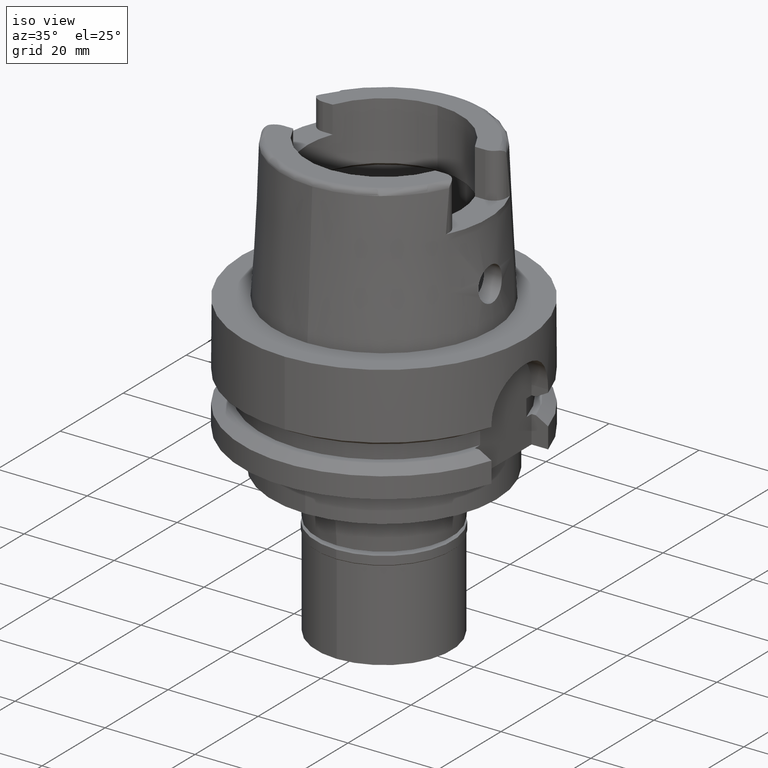
[diagram: clean part render]
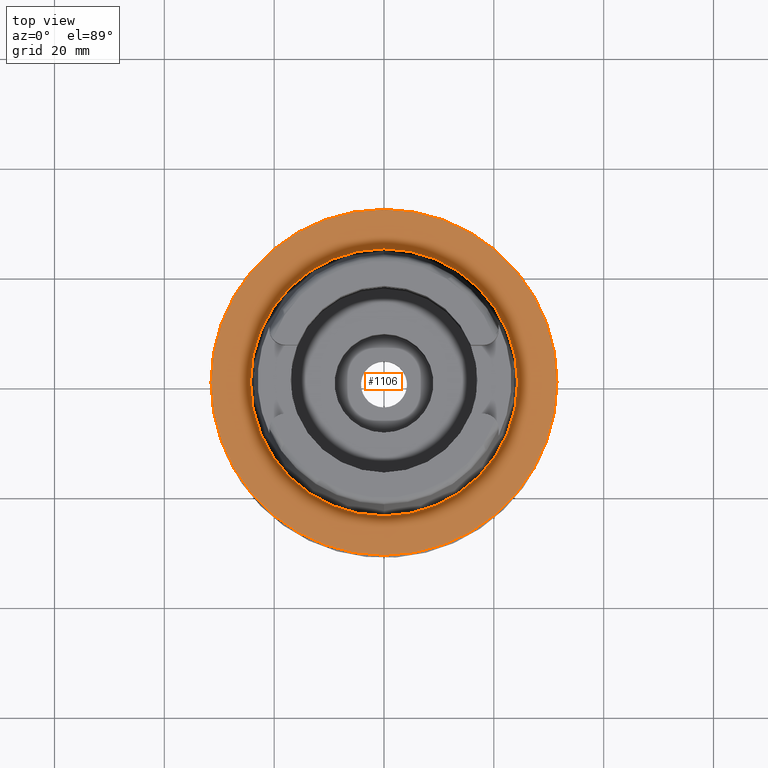
[diagram: tour spotlight — one face highlighted and labeled with its STEP entity id]
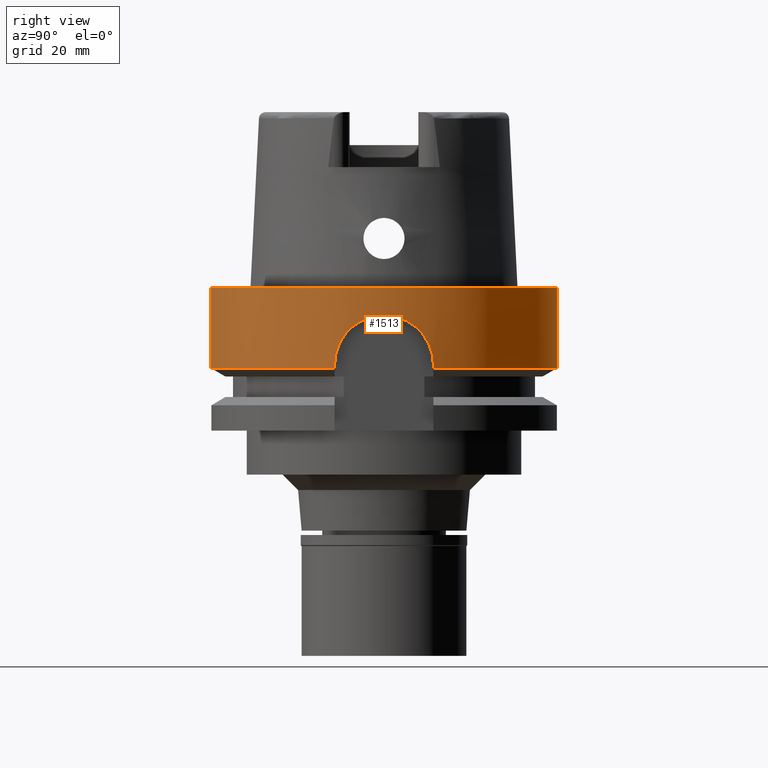
[diagram: tour spotlight — one face highlighted and labeled with its STEP entity id]
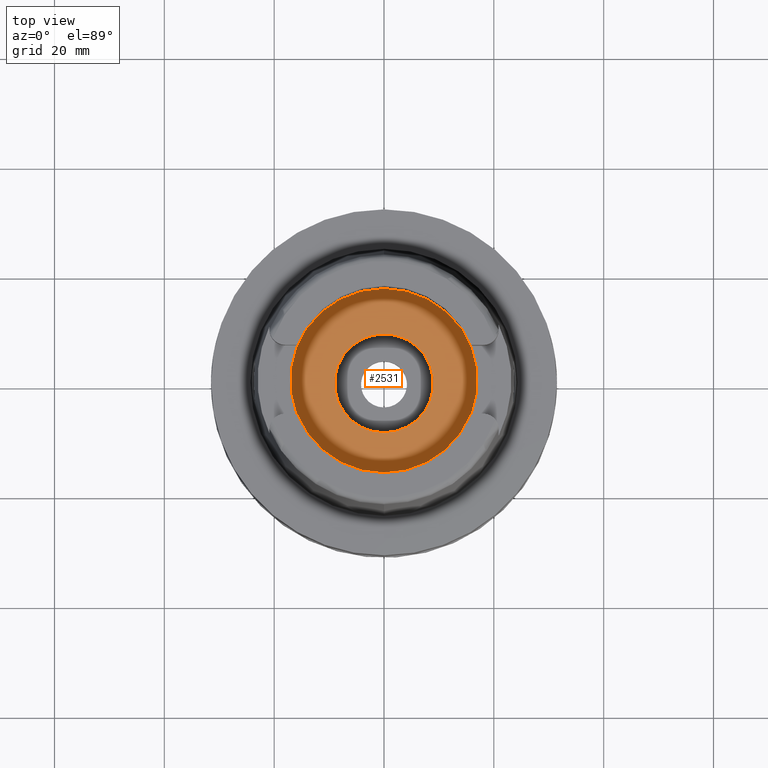
[diagram: tour spotlight — one face highlighted and labeled with its STEP entity id]
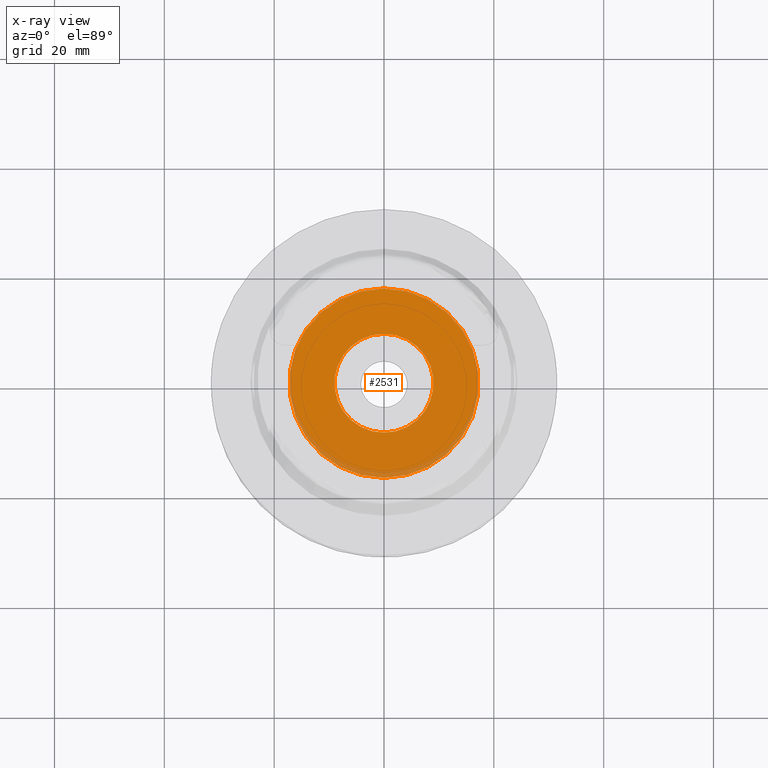
[diagram: x-ray of the same camera — body ghosted, this tour face saturated]
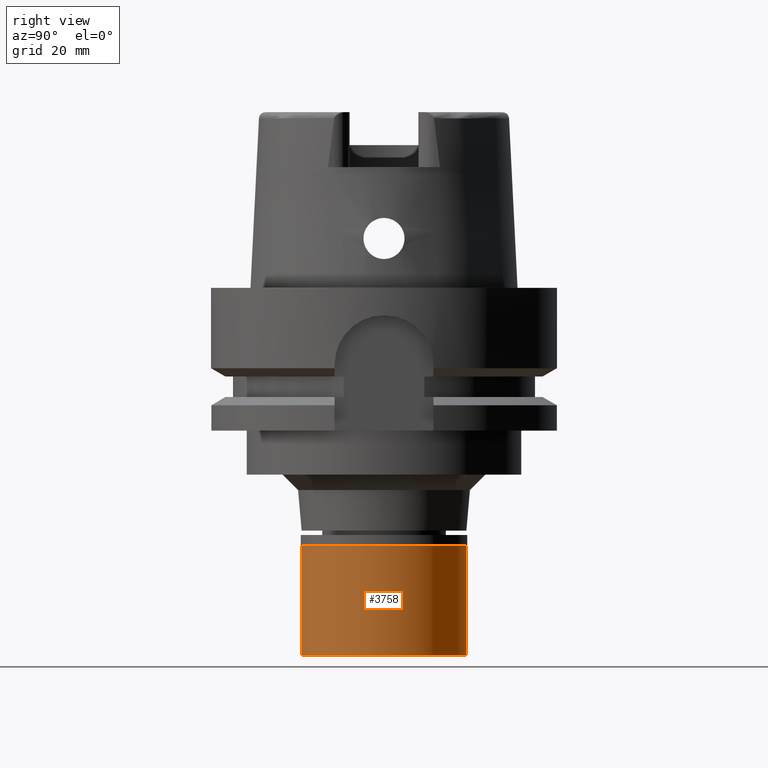
[diagram: tour spotlight — one face highlighted and labeled with its STEP entity id]
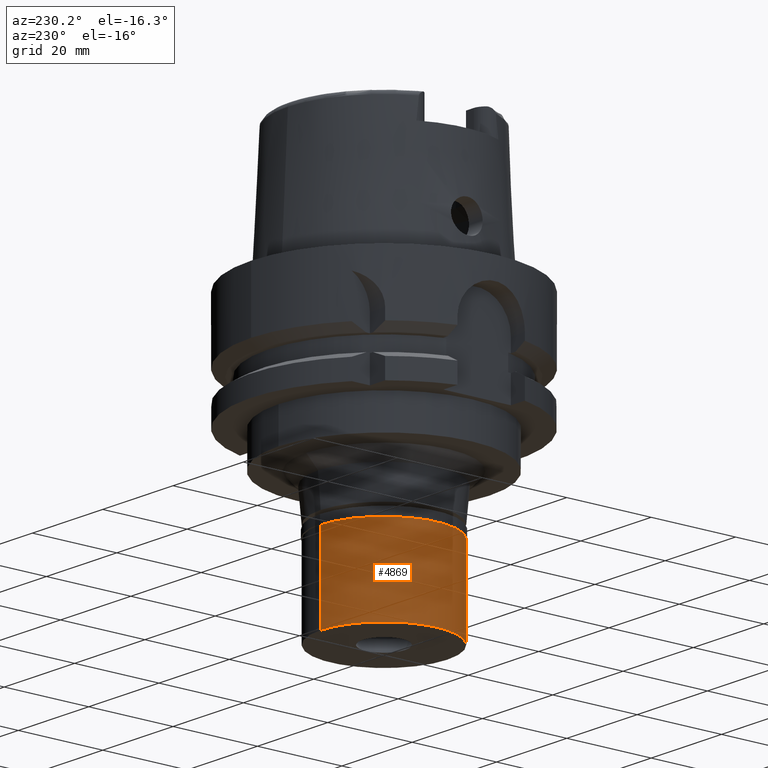
[diagram: tour spotlight — one face highlighted and labeled with its STEP entity id]
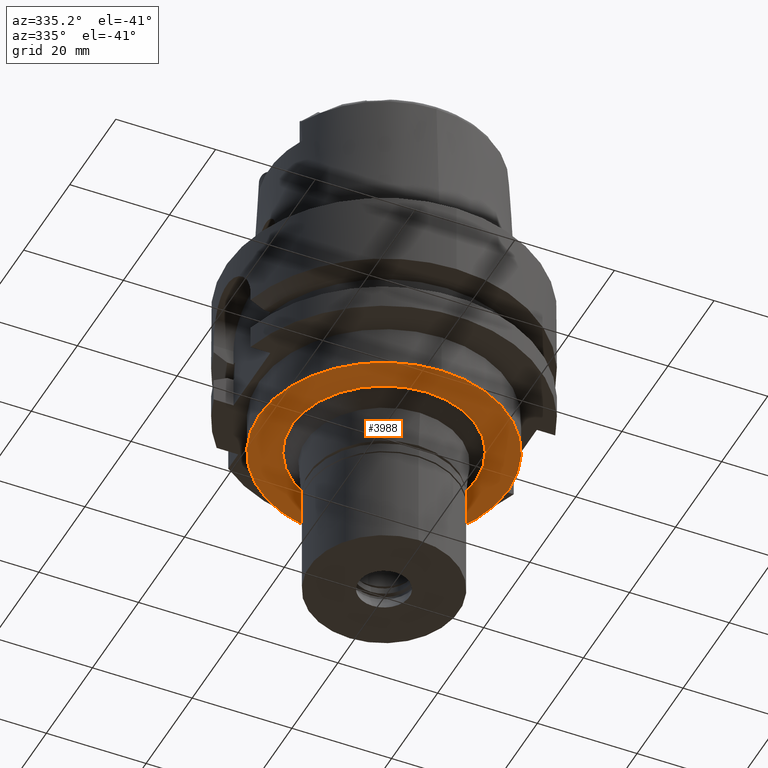
[diagram: tour spotlight — one face highlighted and labeled with its STEP entity id]
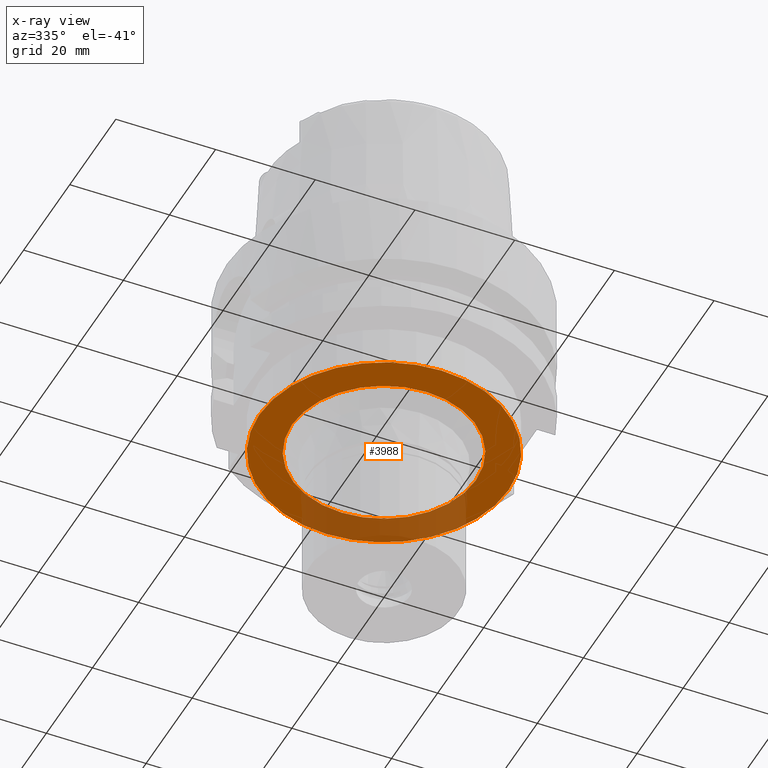
[diagram: x-ray of the same camera — body ghosted, this tour face saturated]
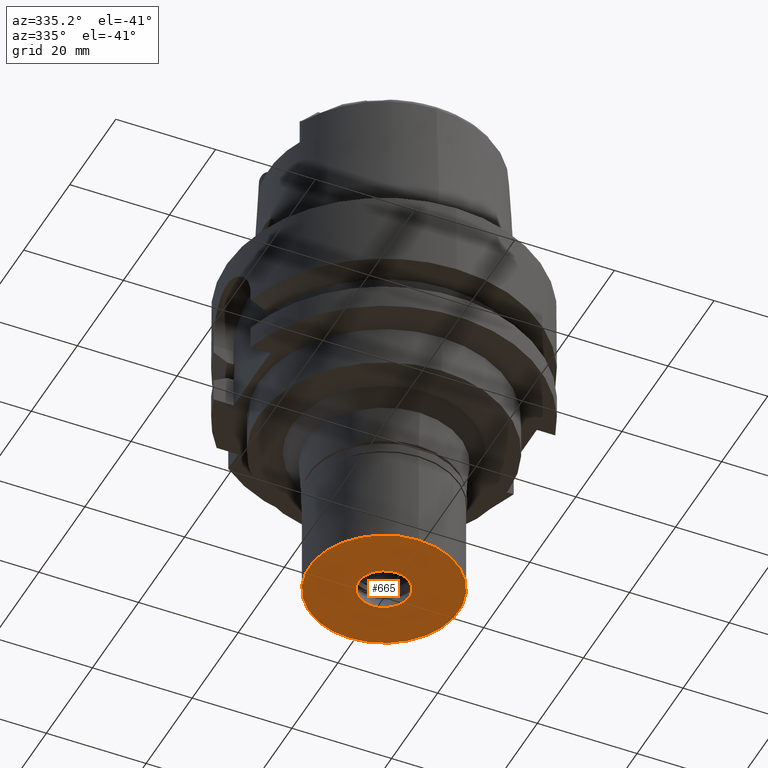
[diagram: tour spotlight — one face highlighted and labeled with its STEP entity id]
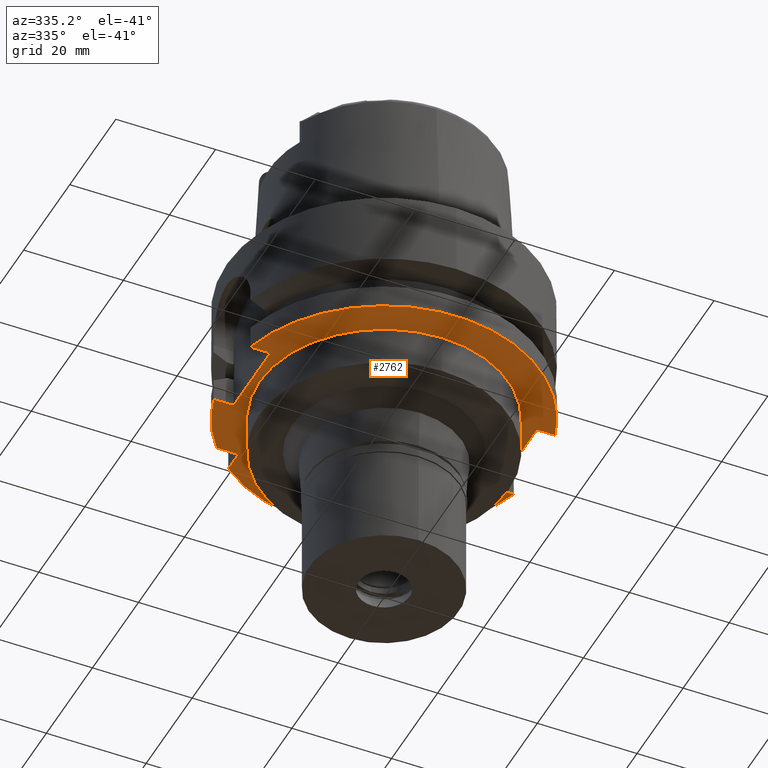
[diagram: tour spotlight — one face highlighted and labeled with its STEP entity id]
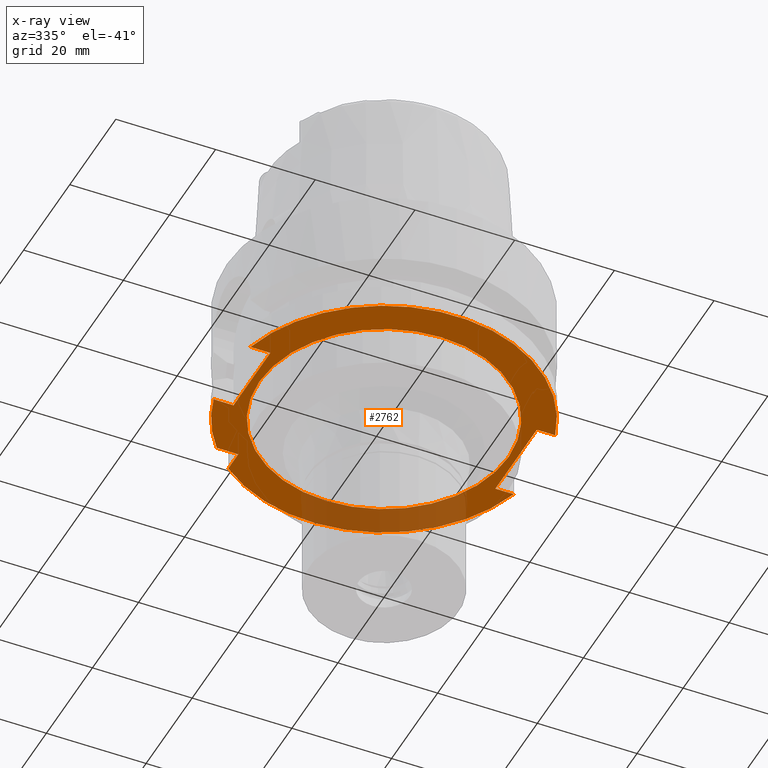
[diagram: x-ray of the same camera — body ghosted, this tour face saturated]
A machine part: a face-by-face anatomy tour. The part has 126 B-rep faces; the first image is the clean iso view, then the 8 largest visible faces are spotlighted one at a time (largest first), each with its STEP entity span.

Face 1 — top view, entity #1106. In plain terms, the highlighted planar face has unit normal (0, 0, 1).
Definition (entity closure, byte-faithful):
#91 = CARTESIAN_POINT ( 'NONE',  ( 0.0000000000000000000, 24.31503482328999866, -1.705302565823999926E-12 ) ) ;
#134 = CARTESIAN_POINT ( 'NONE',  ( 0.0000000000000000000, 0.0000000000000000000, -1.705302565823999926E-12 ) ) ;
#239 = VERTEX_POINT ( 'NONE', #91 ) ;
#343 = CARTESIAN_POINT ( 'NONE',  ( 0.0000000000000000000, -24.31503482328999866, -9.841016890276999833E-13 ) ) ;
#607 = ORIENTED_EDGE ( 'NONE', *, *, #2094, .F. ) ;
#684 = AXIS2_PLACEMENT_3D ( 'NONE', #4194, #1130, #1496 ) ;
#825 = EDGE_CURVE ( 'NONE', #239, #5326, #2317, .T. ) ;
#901 = CARTESIAN_POINT ( 'NONE',  ( 0.0000000000000000000, 0.0000000000000000000, -1.705302565823999926E-12 ) ) ;
#1106 = ADVANCED_FACE ( 'NONE', ( #1614, #3346 ), #1934, .T. ) ;
#1130 = DIRECTION ( 'NONE',  ( 0.0000000000000000000, 0.0000000000000000000, 1.000000000000000000 ) ) ;
#1188 = ORIENTED_EDGE ( 'NONE', *, *, #4580, .F. ) ;
#1394 = VERTEX_POINT ( 'NONE', #2565 ) ;
#1438 = DIRECTION ( 'NONE',  ( 0.0000000000000000000, 0.0000000000000000000, 1.000000000000000000 ) ) ;
#1470 = CIRCLE ( 'NONE', #3668, 31.50000000000000000 ) ;
#1496 = DIRECTION ( 'NONE',  ( 1.000000000000000000, 0.0000000000000000000, 0.0000000000000000000 ) ) ;
#1614 = FACE_OUTER_BOUND ( 'NONE', #3100, .T. ) ;
#1780 = AXIS2_PLACEMENT_3D ( 'NONE', #901, #5211, #3029 ) ;
#1934 = PLANE ( 'NONE',  #684 ) ;
#1977 = CARTESIAN_POINT ( 'NONE',  ( 0.0000000000000000000, 0.0000000000000000000, 0.0000000000000000000 ) ) ;
#1998 = EDGE_CURVE ( 'NONE', #5326, #239, #4125, .T. ) ;
#2094 = EDGE_CURVE ( 'NONE', #1394, #2204, #1470, .T. ) ;
#2204 = VERTEX_POINT ( 'NONE', #2858 ) ;
#2317 = CIRCLE ( 'NONE', #1780, 24.31503482328999866 ) ;
#2534 = ORIENTED_EDGE ( 'NONE', *, *, #825, .F. ) ;
#2565 = CARTESIAN_POINT ( 'NONE',  ( 0.0000000000000000000, 31.50000000000000000, 0.0000000000000000000 ) ) ;
#2590 = ORIENTED_EDGE ( 'NONE', *, *, #1998, .F. ) ;
#2858 = CARTESIAN_POINT ( 'NONE',  ( 0.0000000000000000000, -31.50000000000000000, 0.0000000000000000000 ) ) ;
#3029 = DIRECTION ( 'NONE',  ( 0.0000000000000000000, 1.000000000000000000, 0.0000000000000000000 ) ) ;
#3081 = EDGE_LOOP ( 'NONE', ( #2534, #2590 ) ) ;
#3100 = EDGE_LOOP ( 'NONE', ( #607, #1188 ) ) ;
#3115 = AXIS2_PLACEMENT_3D ( 'NONE', #1977, #3331, #4546 ) ;
#3242 = CARTESIAN_POINT ( 'NONE',  ( 0.0000000000000000000, 0.0000000000000000000, 0.0000000000000000000 ) ) ;
#3331 = DIRECTION ( 'NONE',  ( 0.0000000000000000000, 0.0000000000000000000, -1.000000000000000000 ) ) ;
#3346 = FACE_BOUND ( 'NONE', #3081, .T. ) ;
#3642 = DIRECTION ( 'NONE',  ( 0.0000000000000000000, -1.000000000000000000, 0.0000000000000000000 ) ) ;
#3668 = AXIS2_PLACEMENT_3D ( 'NONE', #3242, #4983, #4564 ) ;
#4125 = CIRCLE ( 'NONE', #5565, 24.31503482328999866 ) ;
#4194 = CARTESIAN_POINT ( 'NONE',  ( 0.0000000000000000000, 0.0000000000000000000, 0.0000000000000000000 ) ) ;
#4546 = DIRECTION ( 'NONE',  ( 0.0000000000000000000, -1.000000000000000000, 0.0000000000000000000 ) ) ;
#4564 = DIRECTION ( 'NONE',  ( 0.0000000000000000000, 1.000000000000000000, 0.0000000000000000000 ) ) ;
#4580 = EDGE_CURVE ( 'NONE', #2204, #1394, #5584, .T. ) ;
#4983 = DIRECTION ( 'NONE',  ( 0.0000000000000000000, 0.0000000000000000000, -1.000000000000000000 ) ) ;
#5211 = DIRECTION ( 'NONE',  ( 0.0000000000000000000, 0.0000000000000000000, 1.000000000000000000 ) ) ;
#5326 = VERTEX_POINT ( 'NONE', #343 ) ;
#5565 = AXIS2_PLACEMENT_3D ( 'NONE', #134, #1438, #3642 ) ;
#5584 = CIRCLE ( 'NONE', #3115, 31.50000000000000000 ) ;

Face 2 — right view, entity #1513. In plain terms, the highlighted cylindrical surface (partial cylindrical patch) has radius 31.5 mm, axis along (0, 0, 1).
Definition (entity closure, byte-faithful):
#23 = CARTESIAN_POINT ( 'NONE',  ( 31.02333757501357425, 5.482629359049226991, -6.837517695553620101 ) ) ;
#56 = CARTESIAN_POINT ( 'NONE',  ( 31.41601185216275027, -2.303148286028971370, -5.298373050690504904 ) ) ;
#80 = CARTESIAN_POINT ( 'NONE',  ( 30.93732522714098820, 5.943076093669481530, -7.214610457292459422 ) ) ;
#107 = CARTESIAN_POINT ( 'NONE',  ( 30.34755049272595429, 8.443310014946431963, -10.86995471604406127 ) ) ;
#135 = CARTESIAN_POINT ( 'NONE',  ( 30.18691769625000276, 9.000000000000000000, -14.00000000000000000 ) ) ;
#264 = AXIS2_PLACEMENT_3D ( 'NONE', #3516, #5628, #5266 ) ;
#310 = CARTESIAN_POINT ( 'NONE',  ( 30.22083254316908452, -8.885479839110491440, -12.56139594818968241 ) ) ;
#421 = CARTESIAN_POINT ( 'NONE',  ( 30.76248422660142268, -6.790190111664749395, -8.062639215853344865 ) ) ;
#436 = LINE ( 'NONE', #2154, #1195 ) ;
#443 = CARTESIAN_POINT ( 'NONE',  ( 30.34852748415920232, -8.439161142957544826, -10.86908815028724540 ) ) ;
#470 = CARTESIAN_POINT ( 'NONE',  ( 31.41673170553607619, 2.306072088955192445, -5.295444306155748571 ) ) ;
#497 = CARTESIAN_POINT ( 'NONE',  ( 31.08392352818422211, -5.104449976060206673, -6.586058333061502346 ) ) ;
#524 = CARTESIAN_POINT ( 'NONE',  ( 31.29981061360341599, -3.548316942432464316, -5.727703354190274432 ) ) ;
#639 = CARTESIAN_POINT ( 'NONE',  ( 30.20358588159592728, 8.944650085524850525, -12.84689954984622418 ) ) ;
#652 = VECTOR ( 'NONE', #1082, 1000.000000000000227 ) ;
#766 = CARTESIAN_POINT ( 'NONE',  ( 30.18691769625000276, -9.000000000000000000, -14.00000000000000000 ) ) ;
#817 = CARTESIAN_POINT ( 'NONE',  ( 0.0000000000000000000, 0.0000000000000000000, -14.62250092523999889 ) ) ;
#853 = CARTESIAN_POINT ( 'NONE',  ( 31.46020107462085846, 1.589521865268832101, -5.140256938793552166 ) ) ;
#881 = CARTESIAN_POINT ( 'NONE',  ( 30.63409167175415959, 7.336974084880786506, -8.779144811426112582 ) ) ;
#905 = CARTESIAN_POINT ( 'NONE',  ( 31.38211755306803852, 2.726251596917056652, -5.421492319191001386 ) ) ;
#934 = CARTESIAN_POINT ( 'NONE',  ( 31.28390414570561617, -3.685865822915727730, -5.788010101827337550 ) ) ;
#966 = CARTESIAN_POINT ( 'NONE',  ( 31.34424928005388011, -3.140513868050762714, -5.560582138794940121 ) ) ;
#1082 = DIRECTION ( 'NONE',  ( 3.318576240564086541E-07, -1.113081286875028516E-06, 0.9999999999993254285 ) ) ;
#1167 = CARTESIAN_POINT ( 'NONE',  ( 30.18691769625000276, -9.000000000000000000, -14.00000000000000000 ) ) ;
#1195 = VECTOR ( 'NONE', #3432, 1000.000000000000114 ) ;
#1204 = ORIENTED_EDGE ( 'NONE', *, *, #3667, .T. ) ;
#1304 = CARTESIAN_POINT ( 'NONE',  ( 30.40907111538118457, -8.218999378291927727, -10.32084764546483946 ) ) ;
#1327 = CARTESIAN_POINT ( 'NONE',  ( 30.32125366942894118, -8.536635002605725830, -11.14538626954141343 ) ) ;
#1355 = CARTESIAN_POINT ( 'NONE',  ( 30.25249515276557233, -8.777240887538876990, -11.98853176838600021 ) ) ;
#1376 = EDGE_CURVE ( 'NONE', #1394, #2115, #1724, .T. ) ;
#1386 = CARTESIAN_POINT ( 'NONE',  ( 31.49999031882314071, 0.2924209201258713420, -5.000032043093906253 ) ) ;
#1394 = VERTEX_POINT ( 'NONE', #2565 ) ;
#1416 = CARTESIAN_POINT ( 'NONE',  ( 30.27351147064785408, 8.704356563323548457, -11.70718102367021807 ) ) ;
#1422 = ORIENTED_EDGE ( 'NONE', *, *, #3128, .T. ) ;
#1470 = CIRCLE ( 'NONE', #3668, 31.50000000000000000 ) ;
#1513 = ADVANCED_FACE ( 'NONE', ( #2446 ), #4161, .T. ) ;
#1590 = EDGE_LOOP ( 'NONE', ( #2374, #1204, #2965, #1640, #5551, #2540, #2822, #1422 ) ) ;
#1592 = VECTOR ( 'NONE', #4779, 1000.000000000000000 ) ;
#1640 = ORIENTED_EDGE ( 'NONE', *, *, #2094, .T. ) ;
#1644 = LINE ( 'NONE', #3372, #5132 ) ;
#1724 = LINE ( 'NONE', #2097, #1592 ) ;
#1737 = CARTESIAN_POINT ( 'NONE',  ( 31.37074780669966856, -2.864471513936539537, -5.462888631900190362 ) ) ;
#1765 = CARTESIAN_POINT ( 'NONE',  ( 30.51502207986537485, -7.816897654631546288, -9.529419929135917400 ) ) ;
#1796 = CARTESIAN_POINT ( 'NONE',  ( 30.80575863710858187, 6.580448024904547388, -7.852802294254276561 ) ) ;
#1823 = CARTESIAN_POINT ( 'NONE',  ( 30.67633611959002593, 7.158905469822100187, -8.537306881324651542 ) ) ;
#1853 = CARTESIAN_POINT ( 'NONE',  ( 30.36287848479640417, -8.387431033257811919, -10.73303656614183055 ) ) ;
#1955 = CARTESIAN_POINT ( 'NONE',  ( 31.50001931037873959, -0.5817076307575149707, -4.999936095724175189 ) ) ;
#1996 = CARTESIAN_POINT ( 'NONE',  ( 30.18691769624741283, 8.999999999999173994, -13.42098225219706187 ) ) ;
#2057 = CARTESIAN_POINT ( 'NONE',  ( 30.19106359658162475, -8.986129158879446521, -13.42175932015210904 ) ) ;
#2094 = EDGE_CURVE ( 'NONE', #1394, #2204, #1470, .T. ) ;
#2097 = CARTESIAN_POINT ( 'NONE',  ( 0.0000000000000000000, 31.50000000000000000, 0.0000000000000000000 ) ) ;
#2115 = VERTEX_POINT ( 'NONE', #4141 ) ;
#2154 = CARTESIAN_POINT ( 'NONE',  ( 30.18691769625000276, -9.000000000000000000, -14.00000000000000000 ) ) ;
#2162 = CARTESIAN_POINT ( 'NONE',  ( 31.00080700024316016, -5.586926947480111316, -6.942343810787217961 ) ) ;
#2185 = CARTESIAN_POINT ( 'NONE',  ( 31.48385943919376118, -1.159642441361203868, -5.055989086221604367 ) ) ;
#2204 = VERTEX_POINT ( 'NONE', #2858 ) ;
#2210 = CARTESIAN_POINT ( 'NONE',  ( 30.93703797203314920, -5.933365912211916005, -7.226046771285678183 ) ) ;
#2239 = CARTESIAN_POINT ( 'NONE',  ( 30.27274335888150247, -8.707386171601834590, -11.70463304055471632 ) ) ;
#2248 = EDGE_CURVE ( 'NONE', #2204, #3669, #1644, .T. ) ;
#2266 = CARTESIAN_POINT ( 'NONE',  ( 30.39331615734052150, 8.276452089464752859, -10.46137309869471643 ) ) ;
#2374 = ORIENTED_EDGE ( 'NONE', *, *, #5625, .F. ) ;
#2446 = FACE_OUTER_BOUND ( 'NONE', #1590, .T. ) ;
#2513 = DIRECTION ( 'NONE',  ( 0.0000000000000000000, 0.0000000000000000000, 1.000000000000000000 ) ) ;
#2540 = ORIENTED_EDGE ( 'NONE', *, *, #4906, .T. ) ;
#2565 = CARTESIAN_POINT ( 'NONE',  ( 0.0000000000000000000, 31.50000000000000000, 0.0000000000000000000 ) ) ;
#2571 = DIRECTION ( 'NONE',  ( 0.0000000000000000000, -1.000000000000000000, 0.0000000000000000000 ) ) ;
#2577 = CARTESIAN_POINT ( 'NONE',  ( 31.32942584899626226, 3.276618679189740480, -5.616325855335427164 ) ) ;
#2604 = CARTESIAN_POINT ( 'NONE',  ( 30.46059799066880558, 8.025402280576924952, -9.923618011497648439 ) ) ;
#2628 = CARTESIAN_POINT ( 'NONE',  ( 31.14264547057256038, 4.733093352808825927, -6.343595145567661575 ) ) ;
#2659 = CARTESIAN_POINT ( 'NONE',  ( 31.18025461402595511, 4.478645084921190289, -6.191965538190022933 ) ) ;
#2691 = CARTESIAN_POINT ( 'NONE',  ( 30.44314436664233270, 8.091301881717214428, -10.05609797414312823 ) ) ;
#2822 = ORIENTED_EDGE ( 'NONE', *, *, #3619, .F. ) ;
#2858 = CARTESIAN_POINT ( 'NONE',  ( 0.0000000000000000000, -31.50000000000000000, 0.0000000000000000000 ) ) ;
#2861 = CARTESIAN_POINT ( 'NONE',  ( 30.18691774145999673, -8.999999848339999886, -14.62250214842000062 ) ) ;
#2892 = CARTESIAN_POINT ( 'NONE',  ( 30.18691769624740928, -8.999999999999156231, -13.71027116896219411 ) ) ;
#2965 = ORIENTED_EDGE ( 'NONE', *, *, #1376, .F. ) ;
#3001 = CARTESIAN_POINT ( 'NONE',  ( 31.40534033409474191, -2.444248811211464201, -5.336929326611277169 ) ) ;
#3034 = CARTESIAN_POINT ( 'NONE',  ( 30.30845943766313866, -8.581909905088449975, -11.28448540524063226 ) ) ;
#3063 = CARTESIAN_POINT ( 'NONE',  ( 31.19851880259072630, 4.349691285478474612, -6.119383872390439016 ) ) ;
#3087 = CARTESIAN_POINT ( 'NONE',  ( 30.55336174551282724, -7.666235764790007678, -9.275699644763086837 ) ) ;
#3125 = CARTESIAN_POINT ( 'NONE',  ( 30.67518755757016180, -7.169324049165367363, -8.526495340278835045 ) ) ;
#3128 = EDGE_CURVE ( 'NONE', #4858, #5112, #4519, .T. ) ;
#3242 = CARTESIAN_POINT ( 'NONE',  ( 0.0000000000000000000, 0.0000000000000000000, 0.0000000000000000000 ) ) ;
#3372 = CARTESIAN_POINT ( 'NONE',  ( 0.0000000000000000000, -31.50000000000000000, 0.0000000000000000000 ) ) ;
#3432 = DIRECTION ( 'NONE',  ( 7.263532005540758591E-08, 2.436291506737918981E-07, -0.9999999999999676925 ) ) ;
#3455 = CARTESIAN_POINT ( 'NONE',  ( 0.0000000000000000000, -31.50000000000000000, -14.62250092523999889 ) ) ;
#3463 = CARTESIAN_POINT ( 'NONE',  ( 31.36972017036094584, 2.865288181433435888, -5.466939114433783331 ) ) ;
#3495 = CARTESIAN_POINT ( 'NONE',  ( 31.44449437632012589, -1.874642473577499135, -5.196201554989810845 ) ) ;
#3516 = CARTESIAN_POINT ( 'NONE',  ( 0.0000000000000000000, 0.0000000000000000000, -14.62250092523999889 ) ) ;
#3523 = CARTESIAN_POINT ( 'NONE',  ( 30.76206231610069608, 6.781080098940710066, -8.074795456596593368 ) ) ;
#3553 = CARTESIAN_POINT ( 'NONE',  ( 30.55331565968570118, 7.666398337893370218, -9.276067100809569865 ) ) ;
#3587 = CARTESIAN_POINT ( 'NONE',  ( 31.06328920365621116, -5.228476073162044990, -6.672935710390861530 ) ) ;
#3619 = EDGE_CURVE ( 'NONE', #4858, #4682, #436, .T. ) ;
#3667 = EDGE_CURVE ( 'NONE', #4474, #2115, #4114, .T. ) ;
#3668 = AXIS2_PLACEMENT_3D ( 'NONE', #3242, #4983, #4564 ) ;
#3669 = VERTEX_POINT ( 'NONE', #3455 ) ;
#3692 = DIRECTION ( 'NONE',  ( 0.0000000000000000000, 0.0000000000000000000, 1.000000000000000000 ) ) ;
#3712 = CARTESIAN_POINT ( 'NONE',  ( 30.18691769625000276, 9.000000000000000000, -14.00000000000000000 ) ) ;
#3800 = CARTESIAN_POINT ( 'NONE',  ( 30.22789393550344528, -8.861449281322510529, -12.42008031656575895 ) ) ;
#3858 = AXIS2_PLACEMENT_3D ( 'NONE', #817, #2513, #2571 ) ;
#3909 = CARTESIAN_POINT ( 'NONE',  ( 30.89362624915437650, -6.154724735004179159, -7.426617966366334755 ) ) ;
#3933 = CARTESIAN_POINT ( 'NONE',  ( 31.25150562833175982, 3.957645130711756387, -5.911338288659397477 ) ) ;
#3964 = CARTESIAN_POINT ( 'NONE',  ( 31.23407006720384516, -4.086595135946910595, -5.979805522573808929 ) ) ;
#3995 = CARTESIAN_POINT ( 'NONE',  ( 31.12350949108028075, 4.857283257646015429, -6.421775784377845575 ) ) ;
#4023 = CARTESIAN_POINT ( 'NONE',  ( 31.18110025080350312, -4.478678177980619068, -6.187759753859559453 ) ) ;
#4114 = CIRCLE ( 'NONE', #264, 31.49999999999999645 ) ;
#4116 = CARTESIAN_POINT ( 'NONE',  ( 30.18691748966999810, 9.000000692887999421, -14.62249533684000191 ) ) ;
#4141 = CARTESIAN_POINT ( 'NONE',  ( 0.0000000000000000000, 31.50000000000000000, -14.62250092523999889 ) ) ;
#4161 = CYLINDRICAL_SURFACE ( 'NONE', #4785, 31.50000000000000000 ) ;
#4231 = CARTESIAN_POINT ( 'NONE',  ( 30.20855272534222635, -8.927139172978366233, -12.84747383254432407 ) ) ;
#4346 = CARTESIAN_POINT ( 'NONE',  ( 30.44277093394650890, -8.093711098187098330, -10.05264505668519170 ) ) ;
#4370 = CARTESIAN_POINT ( 'NONE',  ( 30.32020204386826379, 8.540661447241237880, -11.14616399864410567 ) ) ;
#4396 = CARTESIAN_POINT ( 'NONE',  ( 31.43555752727419161, -2.018914478649930899, -5.228120817200035297 ) ) ;
#4427 = CARTESIAN_POINT ( 'NONE',  ( 31.49391132537047966, 0.7276353566619454538, -5.021124744800149919 ) ) ;
#4452 = CARTESIAN_POINT ( 'NONE',  ( 30.40957265881287697, 8.216574455190459148, -10.32435765555393026 ) ) ;
#4474 = VERTEX_POINT ( 'NONE', #4483 ) ;
#4483 = CARTESIAN_POINT ( 'NONE',  ( 30.18691748966999810, 9.000000692887999421, -14.62249533684000191 ) ) ;
#4513 = CARTESIAN_POINT ( 'NONE',  ( 30.25335232716835421, 8.774166223245282836, -11.99103338167119048 ) ) ;
#4519 = B_SPLINE_CURVE_WITH_KNOTS ( 'NONE', 3,
 ( #1167, #2892, #2057, #4658, #4231, #310, #3800, #1355, #2239, #3034, #1327, #443, #1853, #1304, #4346, #1765, #3087, #3125, #421, #3909, #2210, #2162, #4817, #3587, #497, #4871, #4023, #3964, #4841, #934, #524, #966, #1737, #3001, #56, #4396, #3495, #2185, #1955, #1386, #4427, #5249, #4764, #853, #4791, #470, #905, #3463, #5273, #2577, #5216, #3933, #3063, #2659, #2628, #3995, #23, #80, #1796, #3523, #1823, #881, #3553, #5298, #2604, #2691, #4452, #2266, #107, #4370, #5330, #1416, #4513, #4542, #639, #1996, #135 ),
 .UNSPECIFIED., .F., .F.,
 ( 4, 2, 2, 2, 2, 2, 2, 2, 2, 2, 2, 2, 2, 2, 2, 2, 2, 2, 2, 2, 1, 2, 2, 2, 2, 2, 2, 2, 2, 2, 2, 2, 2, 2, 2, 2, 2, 2, 4 ),
 ( 0.0000000000000000000, 0.03125000000000011102, 0.04687500000000026368, 0.06250000000000041633, 0.09375000000000049960, 0.1093750000000004580, 0.1250000000000004163, 0.1562500000000004996, 0.1875000000000005829, 0.2500000000000006106, 0.2812500000000006106, 0.2968750000000006661, 0.3125000000000007216, 0.3437500000000007772, 0.3593750000000008327, 0.3750000000000008882, 0.4062500000000008882, 0.4218750000000008882, 0.4375000000000008882, 0.5000000000000008882, 0.5312500000000009992, 0.5468750000000009992, 0.5625000000000011102, 0.5937500000000012212, 0.6093750000000012212, 0.6250000000000013323, 0.6562500000000013323, 0.6718750000000012212, 0.6875000000000012212, 0.7500000000000011102, 0.7812500000000011102, 0.8125000000000011102, 0.8437500000000011102, 0.8593750000000009992, 0.8750000000000009992, 0.9062500000000006661, 0.9218750000000005551, 0.9375000000000005551, 1.000000000000000000 ),
 .UNSPECIFIED. ) ;
#4542 = CARTESIAN_POINT ( 'NONE',  ( 30.24411151958536692, 8.805938548479506522, -12.13546497872282259 ) ) ;
#4564 = DIRECTION ( 'NONE',  ( 0.0000000000000000000, 1.000000000000000000, 0.0000000000000000000 ) ) ;
#4658 = CARTESIAN_POINT ( 'NONE',  ( 30.20341519481771542, -8.944491050790947639, -12.99081702027856444 ) ) ;
#4682 = VERTEX_POINT ( 'NONE', #2861 ) ;
#4764 = CARTESIAN_POINT ( 'NONE',  ( 31.46706413555890691, 1.447260997118646975, -5.115905977037804142 ) ) ;
#4779 = DIRECTION ( 'NONE',  ( 0.0000000000000000000, 2.672583210395999918E-14, -1.000000000000000000 ) ) ;
#4785 = AXIS2_PLACEMENT_3D ( 'NONE', #5372, #3692, #4997 ) ;
#4791 = CARTESIAN_POINT ( 'NONE',  ( 31.43637088383653833, 2.021858381996302523, -5.225135461056388486 ) ) ;
#4817 = CARTESIAN_POINT ( 'NONE',  ( 31.02183776959406813, -5.469047411990464624, -6.850635129308150439 ) ) ;
#4841 = CARTESIAN_POINT ( 'NONE',  ( 31.25112480613034904, -3.954170433087017322, -5.913719207586415116 ) ) ;
#4858 = VERTEX_POINT ( 'NONE', #766 ) ;
#4871 = CARTESIAN_POINT ( 'NONE',  ( 31.14338118513676434, -4.733144220673313640, -6.339322956481485249 ) ) ;
#4906 = EDGE_CURVE ( 'NONE', #3669, #4682, #5308, .T. ) ;
#4983 = DIRECTION ( 'NONE',  ( 0.0000000000000000000, 0.0000000000000000000, -1.000000000000000000 ) ) ;
#4997 = DIRECTION ( 'NONE',  ( 0.0000000000000000000, 1.000000000000000000, 0.0000000000000000000 ) ) ;
#5013 = LINE ( 'NONE', #4116, #652 ) ;
#5112 = VERTEX_POINT ( 'NONE', #3712 ) ;
#5123 = DIRECTION ( 'NONE',  ( 0.0000000000000000000, -2.672583210395999918E-14, -1.000000000000000000 ) ) ;
#5132 = VECTOR ( 'NONE', #5123, 1000.000000000000000 ) ;
#5216 = CARTESIAN_POINT ( 'NONE',  ( 31.28442408605212322, 3.689366556784723805, -5.785573784395644736 ) ) ;
#5249 = CARTESIAN_POINT ( 'NONE',  ( 31.47896895017571950, 1.159829099062163360, -5.073784538538467004 ) ) ;
#5266 = DIRECTION ( 'NONE',  ( 0.9583148474999051425, 0.2857142857143015191, 0.0000000000000000000 ) ) ;
#5273 = CARTESIAN_POINT ( 'NONE',  ( 31.34328433854437179, 3.141296993690902095, -5.564694286714754412 ) ) ;
#5298 = CARTESIAN_POINT ( 'NONE',  ( 30.51477324968973903, 7.817868019922316059, -9.531127757740986084 ) ) ;
#5308 = CIRCLE ( 'NONE', #3858, 31.50000000000000000 ) ;
#5330 = CARTESIAN_POINT ( 'NONE',  ( 30.28451810374219022, 8.666017003702322086, -11.56621022909485141 ) ) ;
#5372 = CARTESIAN_POINT ( 'NONE',  ( 0.0000000000000000000, 0.0000000000000000000, 0.0000000000000000000 ) ) ;
#5551 = ORIENTED_EDGE ( 'NONE', *, *, #2248, .T. ) ;
#5625 = EDGE_CURVE ( 'NONE', #4474, #5112, #5013, .T. ) ;
#5628 = DIRECTION ( 'NONE',  ( 0.0000000000000000000, 0.0000000000000000000, 1.000000000000000000 ) ) ;

Face 3 — top view, entity #2531. An x-ray twin of the same camera follows (body ghosted, this face saturated) — the face is partly hidden behind the body. In plain terms, the highlighted planar face has unit normal (0, 0, 1).
Definition (entity closure, byte-faithful):
#300 = AXIS2_PLACEMENT_3D ( 'NONE', #4892, #4014, #4134 ) ;
#332 = DIRECTION ( 'NONE',  ( 0.0000000000000000000, 0.0000000000000000000, -1.000000000000000000 ) ) ;
#469 = AXIS2_PLACEMENT_3D ( 'NONE', #5140, #883, #3065 ) ;
#671 = CARTESIAN_POINT ( 'NONE',  ( 0.0000000000000000000, 9.000000000000000000, -9.950000000000001066 ) ) ;
#736 = ORIENTED_EDGE ( 'NONE', *, *, #4184, .F. ) ;
#784 = AXIS2_PLACEMENT_3D ( 'NONE', #5158, #332, #3374 ) ;
#883 = DIRECTION ( 'NONE',  ( 0.0000000000000000000, 0.0000000000000000000, 1.000000000000000000 ) ) ;
#1113 = CIRCLE ( 'NONE', #469, 9.000000000000000000 ) ;
#1146 = DIRECTION ( 'NONE',  ( 0.0000000000000000000, 0.0000000000000000000, -1.000000000000000000 ) ) ;
#1202 = CIRCLE ( 'NONE', #3566, 17.25000000000000000 ) ;
#1599 = DIRECTION ( 'NONE',  ( 0.0000000000000000000, -1.000000000000000000, 0.0000000000000000000 ) ) ;
#1830 = DIRECTION ( 'NONE',  ( 0.0000000000000000000, 0.0000000000000000000, 1.000000000000000000 ) ) ;
#2132 = VERTEX_POINT ( 'NONE', #671 ) ;
#2297 = CIRCLE ( 'NONE', #4850, 9.000000000000000000 ) ;
#2344 = PLANE ( 'NONE',  #300 ) ;
#2531 = ADVANCED_FACE ( 'NONE', ( #4948, #3608 ), #2344, .T. ) ;
#2730 = CARTESIAN_POINT ( 'NONE',  ( 0.0000000000000000000, 0.0000000000000000000, -9.950000000000001066 ) ) ;
#3041 = VERTEX_POINT ( 'NONE', #5501 ) ;
#3065 = DIRECTION ( 'NONE',  ( 0.0000000000000000000, -1.000000000000000000, 0.0000000000000000000 ) ) ;
#3166 = DIRECTION ( 'NONE',  ( 0.0000000000000000000, 1.000000000000000000, 0.0000000000000000000 ) ) ;
#3286 = EDGE_LOOP ( 'NONE', ( #4916, #3833 ) ) ;
#3289 = ORIENTED_EDGE ( 'NONE', *, *, #5327, .F. ) ;
#3374 = DIRECTION ( 'NONE',  ( 0.0000000000000000000, 1.000000000000000000, 0.0000000000000000000 ) ) ;
#3404 = CARTESIAN_POINT ( 'NONE',  ( 0.0000000000000000000, -9.000000000000000000, -9.950000000000001066 ) ) ;
#3501 = CIRCLE ( 'NONE', #784, 17.25000000000000000 ) ;
#3511 = VERTEX_POINT ( 'NONE', #3404 ) ;
#3513 = EDGE_CURVE ( 'NONE', #3041, #5133, #3501, .T. ) ;
#3566 = AXIS2_PLACEMENT_3D ( 'NONE', #4180, #1146, #1599 ) ;
#3608 = FACE_BOUND ( 'NONE', #4137, .T. ) ;
#3803 = CARTESIAN_POINT ( 'NONE',  ( 0.0000000000000000000, -17.25000000000000000, -9.950000000000001066 ) ) ;
#3833 = ORIENTED_EDGE ( 'NONE', *, *, #5232, .F. ) ;
#4014 = DIRECTION ( 'NONE',  ( 0.0000000000000000000, 0.0000000000000000000, 1.000000000000000000 ) ) ;
#4134 = DIRECTION ( 'NONE',  ( 1.000000000000000000, 0.0000000000000000000, 0.0000000000000000000 ) ) ;
#4137 = EDGE_LOOP ( 'NONE', ( #736, #3289 ) ) ;
#4180 = CARTESIAN_POINT ( 'NONE',  ( 0.0000000000000000000, 0.0000000000000000000, -9.950000000000001066 ) ) ;
#4184 = EDGE_CURVE ( 'NONE', #2132, #3511, #2297, .T. ) ;
#4850 = AXIS2_PLACEMENT_3D ( 'NONE', #2730, #1830, #3166 ) ;
#4892 = CARTESIAN_POINT ( 'NONE',  ( 0.0000000000000000000, 0.0000000000000000000, -9.950000000000001066 ) ) ;
#4916 = ORIENTED_EDGE ( 'NONE', *, *, #3513, .F. ) ;
#4948 = FACE_OUTER_BOUND ( 'NONE', #3286, .T. ) ;
#5133 = VERTEX_POINT ( 'NONE', #3803 ) ;
#5140 = CARTESIAN_POINT ( 'NONE',  ( 0.0000000000000000000, 0.0000000000000000000, -9.950000000000001066 ) ) ;
#5158 = CARTESIAN_POINT ( 'NONE',  ( 0.0000000000000000000, 0.0000000000000000000, -9.950000000000001066 ) ) ;
#5232 = EDGE_CURVE ( 'NONE', #5133, #3041, #1202, .T. ) ;
#5327 = EDGE_CURVE ( 'NONE', #3511, #2132, #1113, .T. ) ;
#5501 = CARTESIAN_POINT ( 'NONE',  ( 0.0000000000000000000, 17.25000000000000000, -9.950000000000001066 ) ) ;

Face 4 — right view, entity #3758. In plain terms, the highlighted cylindrical surface (partial cylindrical patch) has radius 15 mm, axis along (0, 0, -1).
Definition (entity closure, byte-faithful):
#54 = CIRCLE ( 'NONE', #3975, 15.00000000000000000 ) ;
#84 = CARTESIAN_POINT ( 'NONE',  ( 0.0000000000000000000, 15.00000000000000000, -2.000000000000000000 ) ) ;
#99 = DIRECTION ( 'NONE',  ( 0.0000000000000000000, -1.000000000000000000, 0.0000000000000000000 ) ) ;
#111 = DIRECTION ( 'NONE',  ( 0.0000000000000000000, 0.0000000000000000000, -1.000000000000000000 ) ) ;
#306 = VERTEX_POINT ( 'NONE', #892 ) ;
#439 = VERTEX_POINT ( 'NONE', #84 ) ;
#520 = ORIENTED_EDGE ( 'NONE', *, *, #1706, .T. ) ;
#775 = EDGE_CURVE ( 'NONE', #1925, #4864, #1596, .T. ) ;
#848 = DIRECTION ( 'NONE',  ( 0.0000000000000000000, 0.0000000000000000000, 1.000000000000000000 ) ) ;
#892 = CARTESIAN_POINT ( 'NONE',  ( 0.0000000000000000000, -15.00000000000000000, -2.000000000000000000 ) ) ;
#910 = AXIS2_PLACEMENT_3D ( 'NONE', #2711, #4473, #99 ) ;
#985 = CYLINDRICAL_SURFACE ( 'NONE', #910, 15.00000000000000000 ) ;
#1068 = LINE ( 'NONE', #5374, #5459 ) ;
#1498 = EDGE_LOOP ( 'NONE', ( #520, #4980, #3320, #3145 ) ) ;
#1596 = CIRCLE ( 'NONE', #5054, 15.00000000000000000 ) ;
#1706 = EDGE_CURVE ( 'NONE', #439, #306, #54, .T. ) ;
#1708 = CARTESIAN_POINT ( 'NONE',  ( 0.0000000000000000000, 0.0000000000000000000, -22.00000000000000000 ) ) ;
#1887 = CARTESIAN_POINT ( 'NONE',  ( 0.0000000000000000000, 15.00000000000000000, -2.000000000000000000 ) ) ;
#1925 = VERTEX_POINT ( 'NONE', #4839 ) ;
#2258 = FACE_OUTER_BOUND ( 'NONE', #1498, .T. ) ;
#2606 = EDGE_CURVE ( 'NONE', #306, #1925, #1068, .T. ) ;
#2711 = CARTESIAN_POINT ( 'NONE',  ( 0.0000000000000000000, 0.0000000000000000000, 0.0000000000000000000 ) ) ;
#2837 = VECTOR ( 'NONE', #111, 1000.000000000000000 ) ;
#3145 = ORIENTED_EDGE ( 'NONE', *, *, #4435, .F. ) ;
#3299 = CARTESIAN_POINT ( 'NONE',  ( 0.0000000000000000000, 0.0000000000000000000, -2.000000000000000000 ) ) ;
#3320 = ORIENTED_EDGE ( 'NONE', *, *, #775, .T. ) ;
#3325 = CARTESIAN_POINT ( 'NONE',  ( 0.0000000000000000000, 15.00000000000000000, -22.00000000000000000 ) ) ;
#3758 = ADVANCED_FACE ( 'NONE', ( #2258 ), #985, .T. ) ;
#3768 = DIRECTION ( 'NONE',  ( 0.0000000000000000000, 0.0000000000000000000, -1.000000000000000000 ) ) ;
#3822 = DIRECTION ( 'NONE',  ( 0.0000000000000000000, -1.000000000000000000, 0.0000000000000000000 ) ) ;
#3975 = AXIS2_PLACEMENT_3D ( 'NONE', #3299, #3768, #5101 ) ;
#4104 = DIRECTION ( 'NONE',  ( 0.0000000000000000000, 0.0000000000000000000, -1.000000000000000000 ) ) ;
#4435 = EDGE_CURVE ( 'NONE', #439, #4864, #5252, .T. ) ;
#4473 = DIRECTION ( 'NONE',  ( 0.0000000000000000000, 0.0000000000000000000, -1.000000000000000000 ) ) ;
#4839 = CARTESIAN_POINT ( 'NONE',  ( 0.0000000000000000000, -15.00000000000000000, -22.00000000000000000 ) ) ;
#4864 = VERTEX_POINT ( 'NONE', #3325 ) ;
#4980 = ORIENTED_EDGE ( 'NONE', *, *, #2606, .T. ) ;
#5054 = AXIS2_PLACEMENT_3D ( 'NONE', #1708, #848, #3822 ) ;
#5101 = DIRECTION ( 'NONE',  ( 0.0000000000000000000, 1.000000000000000000, 0.0000000000000000000 ) ) ;
#5252 = LINE ( 'NONE', #1887, #2837 ) ;
#5374 = CARTESIAN_POINT ( 'NONE',  ( 0.0000000000000000000, -15.00000000000000000, -2.000000000000000000 ) ) ;
#5459 = VECTOR ( 'NONE', #4104, 1000.000000000000000 ) ;

Face 5 — auxiliary view, entity #4869. In plain terms, the highlighted cylindrical surface (partial cylindrical patch) has radius 15 mm, axis along (0, 0, -1).
Definition (entity closure, byte-faithful):
#84 = CARTESIAN_POINT ( 'NONE',  ( 0.0000000000000000000, 15.00000000000000000, -2.000000000000000000 ) ) ;
#111 = DIRECTION ( 'NONE',  ( 0.0000000000000000000, 0.0000000000000000000, -1.000000000000000000 ) ) ;
#304 = DIRECTION ( 'NONE',  ( 0.0000000000000000000, 0.0000000000000000000, -1.000000000000000000 ) ) ;
#306 = VERTEX_POINT ( 'NONE', #892 ) ;
#439 = VERTEX_POINT ( 'NONE', #84 ) ;
#645 = AXIS2_PLACEMENT_3D ( 'NONE', #1678, #304, #4732 ) ;
#892 = CARTESIAN_POINT ( 'NONE',  ( 0.0000000000000000000, -15.00000000000000000, -2.000000000000000000 ) ) ;
#1054 = CIRCLE ( 'NONE', #4249, 15.00000000000000000 ) ;
#1068 = LINE ( 'NONE', #5374, #5459 ) ;
#1141 = DIRECTION ( 'NONE',  ( 0.0000000000000000000, 0.0000000000000000000, 1.000000000000000000 ) ) ;
#1159 = ORIENTED_EDGE ( 'NONE', *, *, #3297, .T. ) ;
#1187 = CYLINDRICAL_SURFACE ( 'NONE', #645, 15.00000000000000000 ) ;
#1623 = CIRCLE ( 'NONE', #2342, 15.00000000000000000 ) ;
#1672 = EDGE_CURVE ( 'NONE', #4864, #1925, #1054, .T. ) ;
#1678 = CARTESIAN_POINT ( 'NONE',  ( 0.0000000000000000000, 0.0000000000000000000, 0.0000000000000000000 ) ) ;
#1887 = CARTESIAN_POINT ( 'NONE',  ( 0.0000000000000000000, 15.00000000000000000, -2.000000000000000000 ) ) ;
#1909 = DIRECTION ( 'NONE',  ( 0.0000000000000000000, 0.0000000000000000000, -1.000000000000000000 ) ) ;
#1925 = VERTEX_POINT ( 'NONE', #4839 ) ;
#1991 = ORIENTED_EDGE ( 'NONE', *, *, #4435, .T. ) ;
#2342 = AXIS2_PLACEMENT_3D ( 'NONE', #5414, #1909, #3644 ) ;
#2464 = CARTESIAN_POINT ( 'NONE',  ( 0.0000000000000000000, 0.0000000000000000000, -22.00000000000000000 ) ) ;
#2519 = DIRECTION ( 'NONE',  ( 0.0000000000000000000, 1.000000000000000000, 0.0000000000000000000 ) ) ;
#2606 = EDGE_CURVE ( 'NONE', #306, #1925, #1068, .T. ) ;
#2796 = ORIENTED_EDGE ( 'NONE', *, *, #1672, .T. ) ;
#2837 = VECTOR ( 'NONE', #111, 1000.000000000000000 ) ;
#3297 = EDGE_CURVE ( 'NONE', #306, #439, #1623, .T. ) ;
#3325 = CARTESIAN_POINT ( 'NONE',  ( 0.0000000000000000000, 15.00000000000000000, -22.00000000000000000 ) ) ;
#3644 = DIRECTION ( 'NONE',  ( 0.0000000000000000000, -1.000000000000000000, 0.0000000000000000000 ) ) ;
#3929 = ORIENTED_EDGE ( 'NONE', *, *, #2606, .F. ) ;
#4104 = DIRECTION ( 'NONE',  ( 0.0000000000000000000, 0.0000000000000000000, -1.000000000000000000 ) ) ;
#4249 = AXIS2_PLACEMENT_3D ( 'NONE', #2464, #1141, #2519 ) ;
#4435 = EDGE_CURVE ( 'NONE', #439, #4864, #5252, .T. ) ;
#4732 = DIRECTION ( 'NONE',  ( 0.0000000000000000000, -1.000000000000000000, 0.0000000000000000000 ) ) ;
#4839 = CARTESIAN_POINT ( 'NONE',  ( 0.0000000000000000000, -15.00000000000000000, -22.00000000000000000 ) ) ;
#4864 = VERTEX_POINT ( 'NONE', #3325 ) ;
#4869 = ADVANCED_FACE ( 'NONE', ( #5494 ), #1187, .T. ) ;
#5252 = LINE ( 'NONE', #1887, #2837 ) ;
#5339 = EDGE_LOOP ( 'NONE', ( #2796, #3929, #1159, #1991 ) ) ;
#5374 = CARTESIAN_POINT ( 'NONE',  ( 0.0000000000000000000, -15.00000000000000000, -2.000000000000000000 ) ) ;
#5414 = CARTESIAN_POINT ( 'NONE',  ( 0.0000000000000000000, 0.0000000000000000000, -2.000000000000000000 ) ) ;
#5459 = VECTOR ( 'NONE', #4104, 1000.000000000000000 ) ;
#5494 = FACE_OUTER_BOUND ( 'NONE', #5339, .T. ) ;

Face 6 — auxiliary view, entity #3988. An x-ray twin of the same camera follows (body ghosted, this face saturated) — the face is partly hidden behind the body. In plain terms, the highlighted planar face has unit normal (0, 0, 1).
Definition (entity closure, byte-faithful):
#20 = VERTEX_POINT ( 'NONE', #5517 ) ;
#296 = AXIS2_PLACEMENT_3D ( 'NONE', #2423, #719, #3719 ) ;
#319 = CIRCLE ( 'NONE', #1691, 25.00000000000000000 ) ;
#564 = VERTEX_POINT ( 'NONE', #4352 ) ;
#719 = DIRECTION ( 'NONE',  ( 0.0000000000000000000, 0.0000000000000000000, 1.000000000000000000 ) ) ;
#898 = EDGE_CURVE ( 'NONE', #564, #3808, #319, .T. ) ;
#982 = DIRECTION ( 'NONE',  ( 0.0000000000000000000, -1.000000000000000000, 0.0000000000000000000 ) ) ;
#1441 = DIRECTION ( 'NONE',  ( 0.0000000000000000000, 1.000000000000000000, 0.0000000000000000000 ) ) ;
#1490 = PLANE ( 'NONE',  #296 ) ;
#1523 = VERTEX_POINT ( 'NONE', #4131 ) ;
#1691 = AXIS2_PLACEMENT_3D ( 'NONE', #3959, #1791, #3519 ) ;
#1791 = DIRECTION ( 'NONE',  ( 0.0000000000000000000, 0.0000000000000000000, 1.000000000000000000 ) ) ;
#2423 = CARTESIAN_POINT ( 'NONE',  ( 0.0000000000000000000, 0.0000000000000000000, -34.00000000000000000 ) ) ;
#2515 = ORIENTED_EDGE ( 'NONE', *, *, #3829, .F. ) ;
#2829 = CARTESIAN_POINT ( 'NONE',  ( 0.0000000000000000000, 0.0000000000000000000, -34.00000000000000000 ) ) ;
#3037 = CARTESIAN_POINT ( 'NONE',  ( 0.0000000000000000000, 0.0000000000000000000, -34.00000000000000000 ) ) ;
#3116 = ORIENTED_EDGE ( 'NONE', *, *, #898, .F. ) ;
#3147 = DIRECTION ( 'NONE',  ( 0.0000000000000000000, 0.0000000000000000000, -1.000000000000000000 ) ) ;
#3519 = DIRECTION ( 'NONE',  ( 0.0000000000000000000, -1.000000000000000000, 0.0000000000000000000 ) ) ;
#3664 = FACE_OUTER_BOUND ( 'NONE', #3905, .T. ) ;
#3719 = DIRECTION ( 'NONE',  ( 1.000000000000000000, 0.0000000000000000000, 0.0000000000000000000 ) ) ;
#3808 = VERTEX_POINT ( 'NONE', #4013 ) ;
#3816 = EDGE_LOOP ( 'NONE', ( #4251, #2515 ) ) ;
#3829 = EDGE_CURVE ( 'NONE', #20, #1523, #5220, .T. ) ;
#3905 = EDGE_LOOP ( 'NONE', ( #5511, #3116 ) ) ;
#3959 = CARTESIAN_POINT ( 'NONE',  ( 0.0000000000000000000, 0.0000000000000000000, -34.00000000000000000 ) ) ;
#3988 = ADVANCED_FACE ( 'NONE', ( #3664, #5402 ), #1490, .F. ) ;
#4013 = CARTESIAN_POINT ( 'NONE',  ( 0.0000000000000000000, 25.00000000000000000, -34.00000000000000000 ) ) ;
#4131 = CARTESIAN_POINT ( 'NONE',  ( 0.0000000000000000000, 18.44741611008999982, -34.00000000000000000 ) ) ;
#4251 = ORIENTED_EDGE ( 'NONE', *, *, #5271, .F. ) ;
#4322 = AXIS2_PLACEMENT_3D ( 'NONE', #2829, #4543, #1441 ) ;
#4352 = CARTESIAN_POINT ( 'NONE',  ( 0.0000000000000000000, -25.00000000000000000, -34.00000000000000000 ) ) ;
#4399 = AXIS2_PLACEMENT_3D ( 'NONE', #3037, #4767, #5251 ) ;
#4469 = CARTESIAN_POINT ( 'NONE',  ( 0.0000000000000000000, 0.0000000000000000000, -34.00000000000000000 ) ) ;
#4543 = DIRECTION ( 'NONE',  ( 0.0000000000000000000, 0.0000000000000000000, 1.000000000000000000 ) ) ;
#4681 = EDGE_CURVE ( 'NONE', #3808, #564, #4844, .T. ) ;
#4767 = DIRECTION ( 'NONE',  ( 0.0000000000000000000, 0.0000000000000000000, -1.000000000000000000 ) ) ;
#4844 = CIRCLE ( 'NONE', #4322, 25.00000000000000000 ) ;
#5220 = CIRCLE ( 'NONE', #5485, 18.44741611008999982 ) ;
#5251 = DIRECTION ( 'NONE',  ( 0.0000000000000000000, 1.000000000000000000, 0.0000000000000000000 ) ) ;
#5271 = EDGE_CURVE ( 'NONE', #1523, #20, #5573, .T. ) ;
#5402 = FACE_BOUND ( 'NONE', #3816, .T. ) ;
#5485 = AXIS2_PLACEMENT_3D ( 'NONE', #4469, #3147, #982 ) ;
#5511 = ORIENTED_EDGE ( 'NONE', *, *, #4681, .F. ) ;
#5517 = CARTESIAN_POINT ( 'NONE',  ( 0.0000000000000000000, -18.44741611008999982, -34.00000000000000000 ) ) ;
#5573 = CIRCLE ( 'NONE', #4399, 18.44741611008999982 ) ;

Face 7 — auxiliary view, entity #665. In plain terms, the highlighted planar face has unit normal (0, 0, -1).
Definition (entity closure, byte-faithful):
#222 = VERTEX_POINT ( 'NONE', #3169 ) ;
#387 = CARTESIAN_POINT ( 'NONE',  ( 0.0000000000000000000, 0.0000000000000000000, -22.00000000000000000 ) ) ;
#665 = ADVANCED_FACE ( 'NONE', ( #2414, #5421 ), #2809, .T. ) ;
#775 = EDGE_CURVE ( 'NONE', #1925, #4864, #1596, .T. ) ;
#848 = DIRECTION ( 'NONE',  ( 0.0000000000000000000, 0.0000000000000000000, 1.000000000000000000 ) ) ;
#899 = ORIENTED_EDGE ( 'NONE', *, *, #4431, .F. ) ;
#1027 = CIRCLE ( 'NONE', #2913, 5.100000000001000622 ) ;
#1054 = CIRCLE ( 'NONE', #4249, 15.00000000000000000 ) ;
#1059 = CARTESIAN_POINT ( 'NONE',  ( 0.0000000000000000000, 0.0000000000000000000, -22.00000000000000000 ) ) ;
#1141 = DIRECTION ( 'NONE',  ( 0.0000000000000000000, 0.0000000000000000000, 1.000000000000000000 ) ) ;
#1334 = ORIENTED_EDGE ( 'NONE', *, *, #3437, .F. ) ;
#1359 = DIRECTION ( 'NONE',  ( 0.0000000000000000000, 0.0000000000000000000, -1.000000000000000000 ) ) ;
#1586 = DIRECTION ( 'NONE',  ( 0.0000000000000000000, 0.0000000000000000000, -1.000000000000000000 ) ) ;
#1596 = CIRCLE ( 'NONE', #5054, 15.00000000000000000 ) ;
#1613 = VERTEX_POINT ( 'NONE', #1651 ) ;
#1651 = CARTESIAN_POINT ( 'NONE',  ( 0.0000000000000000000, 5.100000000001000622, -22.00000000000000000 ) ) ;
#1672 = EDGE_CURVE ( 'NONE', #4864, #1925, #1054, .T. ) ;
#1708 = CARTESIAN_POINT ( 'NONE',  ( 0.0000000000000000000, 0.0000000000000000000, -22.00000000000000000 ) ) ;
#1925 = VERTEX_POINT ( 'NONE', #4839 ) ;
#2217 = CARTESIAN_POINT ( 'NONE',  ( 0.0000000000000000000, 0.0000000000000000000, -22.00000000000000000 ) ) ;
#2414 = FACE_OUTER_BOUND ( 'NONE', #2990, .T. ) ;
#2458 = DIRECTION ( 'NONE',  ( 0.0000000000000000000, -1.000000000000000000, 0.0000000000000000000 ) ) ;
#2464 = CARTESIAN_POINT ( 'NONE',  ( 0.0000000000000000000, 0.0000000000000000000, -22.00000000000000000 ) ) ;
#2519 = DIRECTION ( 'NONE',  ( 0.0000000000000000000, 1.000000000000000000, 0.0000000000000000000 ) ) ;
#2809 = PLANE ( 'NONE',  #4493 ) ;
#2913 = AXIS2_PLACEMENT_3D ( 'NONE', #387, #1586, #2458 ) ;
#2950 = ORIENTED_EDGE ( 'NONE', *, *, #775, .F. ) ;
#2990 = EDGE_LOOP ( 'NONE', ( #3549, #2950 ) ) ;
#3169 = CARTESIAN_POINT ( 'NONE',  ( 0.0000000000000000000, -5.100000000001000622, -22.00000000000000000 ) ) ;
#3325 = CARTESIAN_POINT ( 'NONE',  ( 0.0000000000000000000, 15.00000000000000000, -22.00000000000000000 ) ) ;
#3437 = EDGE_CURVE ( 'NONE', #222, #1613, #1027, .T. ) ;
#3549 = ORIENTED_EDGE ( 'NONE', *, *, #1672, .F. ) ;
#3822 = DIRECTION ( 'NONE',  ( 0.0000000000000000000, -1.000000000000000000, 0.0000000000000000000 ) ) ;
#3853 = CIRCLE ( 'NONE', #4589, 5.100000000001000622 ) ;
#4249 = AXIS2_PLACEMENT_3D ( 'NONE', #2464, #1141, #2519 ) ;
#4431 = EDGE_CURVE ( 'NONE', #1613, #222, #3853, .T. ) ;
#4493 = AXIS2_PLACEMENT_3D ( 'NONE', #1059, #4605, #5338 ) ;
#4589 = AXIS2_PLACEMENT_3D ( 'NONE', #2217, #1359, #4878 ) ;
#4605 = DIRECTION ( 'NONE',  ( 0.0000000000000000000, 0.0000000000000000000, -1.000000000000000000 ) ) ;
#4839 = CARTESIAN_POINT ( 'NONE',  ( 0.0000000000000000000, -15.00000000000000000, -22.00000000000000000 ) ) ;
#4864 = VERTEX_POINT ( 'NONE', #3325 ) ;
#4878 = DIRECTION ( 'NONE',  ( 0.0000000000000000000, 1.000000000000000000, 0.0000000000000000000 ) ) ;
#5054 = AXIS2_PLACEMENT_3D ( 'NONE', #1708, #848, #3822 ) ;
#5146 = EDGE_LOOP ( 'NONE', ( #899, #1334 ) ) ;
#5338 = DIRECTION ( 'NONE',  ( 0.0000000000000000000, -1.000000000000000000, 0.0000000000000000000 ) ) ;
#5421 = FACE_BOUND ( 'NONE', #5146, .T. ) ;

Face 8 — auxiliary view, entity #2762. An x-ray twin of the same camera follows (body ghosted, this face saturated) — the face is partly hidden behind the body. In plain terms, the highlighted planar face has unit normal (0, 0, 1).
Definition (entity closure, byte-faithful):
#1 = VECTOR ( 'NONE', #1375, 1000.000000000000000 ) ;
#45 = CARTESIAN_POINT ( 'NONE',  ( 0.0000000000000000000, 0.0000000000000000000, -26.00000000000000000 ) ) ;
#94 = ORIENTED_EDGE ( 'NONE', *, *, #2219, .F. ) ;
#157 = CARTESIAN_POINT ( 'NONE',  ( 0.0000000000000000000, 0.0000000000000000000, -26.00000000000000000 ) ) ;
#190 = CARTESIAN_POINT ( 'NONE',  ( 0.0000000000000000000, -25.00000000000000000, -26.00000000000000000 ) ) ;
#277 = CARTESIAN_POINT ( 'NONE',  ( -26.50000000000000000, -8.000000000000000000, -26.00000000000000000 ) ) ;
#352 = FACE_OUTER_BOUND ( 'NONE', #3345, .T. ) ;
#449 = DIRECTION ( 'NONE',  ( 0.0000000000000000000, 1.000000000000000000, 0.0000000000000000000 ) ) ;
#450 = VERTEX_POINT ( 'NONE', #2669 ) ;
#504 = EDGE_CURVE ( 'NONE', #4168, #2936, #1657, .T. ) ;
#530 = CARTESIAN_POINT ( 'NONE',  ( -20.00000000000000000, 20.00000000000000000, -26.00000000000000000 ) ) ;
#535 = CARTESIAN_POINT ( 'NONE',  ( -20.00000000000000000, 24.33618704727999926, -26.00000000000000000 ) ) ;
#546 = VERTEX_POINT ( 'NONE', #530 ) ;
#657 = EDGE_CURVE ( 'NONE', #1650, #4700, #4964, .T. ) ;
#663 = PLANE ( 'NONE',  #1731 ) ;
#683 = CARTESIAN_POINT ( 'NONE',  ( -26.50000000000000000, -8.000000000000000000, -26.00000000000000000 ) ) ;
#742 = CARTESIAN_POINT ( 'NONE',  ( 0.0000000000000000000, 0.0000000000000000000, -26.00000000000000000 ) ) ;
#761 = VERTEX_POINT ( 'NONE', #820 ) ;
#768 = ORIENTED_EDGE ( 'NONE', *, *, #1953, .F. ) ;
#790 = DIRECTION ( 'NONE',  ( 1.556703139445999911E-13, 1.000000000000000000, 0.0000000000000000000 ) ) ;
#820 = CARTESIAN_POINT ( 'NONE',  ( 26.50000000000000000, 9.000000000000000000, -26.00000000000000000 ) ) ;
#863 = EDGE_CURVE ( 'NONE', #5458, #3270, #5154, .T. ) ;
#886 = DIRECTION ( 'NONE',  ( 0.0000000000000000000, 0.0000000000000000000, 1.000000000000000000 ) ) ;
#921 = DIRECTION ( 'NONE',  ( 0.0000000000000000000, -1.000000000000000000, 0.0000000000000000000 ) ) ;
#931 = DIRECTION ( 'NONE',  ( 0.0000000000000000000, 0.0000000000000000000, -1.000000000000000000 ) ) ;
#1049 = ORIENTED_EDGE ( 'NONE', *, *, #3685, .T. ) ;
#1080 = CARTESIAN_POINT ( 'NONE',  ( -26.50000000000000000, 8.000000000000000000, -26.00000000000000000 ) ) ;
#1109 = AXIS2_PLACEMENT_3D ( 'NONE', #5305, #886, #449 ) ;
#1112 = DIRECTION ( 'NONE',  ( 0.0000000000000000000, 1.000000000000000000, 0.0000000000000000000 ) ) ;
#1160 = DIRECTION ( 'NONE',  ( -1.000000000000000000, -1.540316790609000194E-13, 0.0000000000000000000 ) ) ;
#1174 = LINE ( 'NONE', #4667, #3036 ) ;
#1197 = CIRCLE ( 'NONE', #4395, 25.00000000000000000 ) ;
#1256 = LINE ( 'NONE', #5554, #1923 ) ;
#1267 = LINE ( 'NONE', #4673, #4882 ) ;
#1297 = CARTESIAN_POINT ( 'NONE',  ( -26.50000000000000000, 8.000000000000000000, -26.00000000000000000 ) ) ;
#1339 = EDGE_CURVE ( 'NONE', #546, #2936, #1267, .T. ) ;
#1375 = DIRECTION ( 'NONE',  ( -1.000000000000000000, 8.776122650817999518E-14, 0.0000000000000000000 ) ) ;
#1477 = CIRCLE ( 'NONE', #5134, 31.50000000000000711 ) ;
#1494 = VERTEX_POINT ( 'NONE', #1574 ) ;
#1534 = EDGE_CURVE ( 'NONE', #1494, #4529, #3718, .T. ) ;
#1574 = CARTESIAN_POINT ( 'NONE',  ( 26.50000000000000000, -9.000000000000000000, -26.00000000000000000 ) ) ;
#1597 = EDGE_CURVE ( 'NONE', #761, #4168, #1174, .T. ) ;
#1621 = ORIENTED_EDGE ( 'NONE', *, *, #4296, .F. ) ;
#1650 = VERTEX_POINT ( 'NONE', #277 ) ;
#1657 = CIRCLE ( 'NONE', #1109, 31.50000000000000000 ) ;
#1675 = CARTESIAN_POINT ( 'NONE',  ( -20.00000000000000000, 20.00000000000000000, -26.00000000000000000 ) ) ;
#1731 = AXIS2_PLACEMENT_3D ( 'NONE', #4615, #5087, #1987 ) ;
#1784 = DIRECTION ( 'NONE',  ( 0.0000000000000000000, 0.0000000000000000000, 1.000000000000000000 ) ) ;
#1900 = DIRECTION ( 'NONE',  ( 0.0000000000000000000, 1.000000000000000000, 0.0000000000000000000 ) ) ;
#1923 = VECTOR ( 'NONE', #2466, 1000.000000000000000 ) ;
#1953 = EDGE_CURVE ( 'NONE', #3270, #5458, #1197, .T. ) ;
#1987 = DIRECTION ( 'NONE',  ( 1.000000000000000000, 0.0000000000000000000, 0.0000000000000000000 ) ) ;
#2067 = ORIENTED_EDGE ( 'NONE', *, *, #1534, .T. ) ;
#2189 = CARTESIAN_POINT ( 'NONE',  ( -24.33618704727999926, 20.00000000000000000, -26.00000000000000000 ) ) ;
#2219 = EDGE_CURVE ( 'NONE', #546, #4488, #4196, .T. ) ;
#2237 = DIRECTION ( 'NONE',  ( 0.0000000000000000000, -1.000000000000000000, 0.0000000000000000000 ) ) ;
#2301 = CARTESIAN_POINT ( 'NONE',  ( 30.18691769625000276, -9.000000000000000000, -26.00000000000000000 ) ) ;
#2316 = CARTESIAN_POINT ( 'NONE',  ( 26.50000000000000000, -9.000000000000000000, -26.00000000000000000 ) ) ;
#2387 = VECTOR ( 'NONE', #1160, 1000.000000000000000 ) ;
#2466 = DIRECTION ( 'NONE',  ( -1.000000000000000000, -8.686570378870999660E-14, 0.0000000000000000000 ) ) ;
#2484 = EDGE_CURVE ( 'NONE', #450, #4529, #3302, .T. ) ;
#2552 = EDGE_CURVE ( 'NONE', #1494, #761, #4919, .T. ) ;
#2580 = VECTOR ( 'NONE', #3281, 1000.000000000000000 ) ;
#2582 = CARTESIAN_POINT ( 'NONE',  ( 0.0000000000000000000, 25.00000000000000000, -26.00000000000000000 ) ) ;
#2669 = CARTESIAN_POINT ( 'NONE',  ( -30.46719547316000032, -8.000000000000000000, -26.00000000000000000 ) ) ;
#2701 = CARTESIAN_POINT ( 'NONE',  ( 30.18691769625000276, 9.000000000000000000, -26.00000000000000000 ) ) ;
#2762 = ADVANCED_FACE ( 'NONE', ( #352, #3697 ), #663, .F. ) ;
#2936 = VERTEX_POINT ( 'NONE', #535 ) ;
#3010 = VECTOR ( 'NONE', #1112, 1000.000000000000000 ) ;
#3020 = ORIENTED_EDGE ( 'NONE', *, *, #504, .F. ) ;
#3027 = EDGE_CURVE ( 'NONE', #1650, #450, #1256, .T. ) ;
#3036 = VECTOR ( 'NONE', #4241, 1000.000000000000000 ) ;
#3103 = CARTESIAN_POINT ( 'NONE',  ( -30.46719547316000032, 8.000000000000000000, -26.00000000000000000 ) ) ;
#3235 = AXIS2_PLACEMENT_3D ( 'NONE', #157, #3640, #3583 ) ;
#3237 = EDGE_LOOP ( 'NONE', ( #4536, #768 ) ) ;
#3239 = ORIENTED_EDGE ( 'NONE', *, *, #3027, .F. ) ;
#3251 = DIRECTION ( 'NONE',  ( 0.0000000000000000000, 0.0000000000000000000, 1.000000000000000000 ) ) ;
#3270 = VERTEX_POINT ( 'NONE', #190 ) ;
#3281 = DIRECTION ( 'NONE',  ( 1.000000000000000000, 6.889739586341000002E-14, 0.0000000000000000000 ) ) ;
#3302 = CIRCLE ( 'NONE', #4045, 31.50000000000000000 ) ;
#3345 = EDGE_LOOP ( 'NONE', ( #3020, #4048, #5255, #2067, #5130, #3239, #4996, #1049, #1621, #94, #3880 ) ) ;
#3480 = VECTOR ( 'NONE', #1900, 1000.000000000000000 ) ;
#3583 = DIRECTION ( 'NONE',  ( 0.0000000000000000000, 1.000000000000000000, 0.0000000000000000000 ) ) ;
#3640 = DIRECTION ( 'NONE',  ( 0.0000000000000000000, 0.0000000000000000000, -1.000000000000000000 ) ) ;
#3685 = EDGE_CURVE ( 'NONE', #4700, #4109, #4833, .T. ) ;
#3697 = FACE_BOUND ( 'NONE', #3237, .T. ) ;
#3718 = LINE ( 'NONE', #5453, #2580 ) ;
#3880 = ORIENTED_EDGE ( 'NONE', *, *, #1339, .T. ) ;
#3881 = CARTESIAN_POINT ( 'NONE',  ( 0.0000000000000000000, 0.0000000000000000000, -26.00000000000000000 ) ) ;
#4045 = AXIS2_PLACEMENT_3D ( 'NONE', #45, #1784, #921 ) ;
#4048 = ORIENTED_EDGE ( 'NONE', *, *, #1597, .F. ) ;
#4109 = VERTEX_POINT ( 'NONE', #3103 ) ;
#4168 = VERTEX_POINT ( 'NONE', #2701 ) ;
#4196 = LINE ( 'NONE', #1675, #2387 ) ;
#4241 = DIRECTION ( 'NONE',  ( 1.000000000000000000, -7.275179563199999529E-14, 0.0000000000000000000 ) ) ;
#4296 = EDGE_CURVE ( 'NONE', #4488, #4109, #1477, .T. ) ;
#4395 = AXIS2_PLACEMENT_3D ( 'NONE', #3881, #931, #2237 ) ;
#4488 = VERTEX_POINT ( 'NONE', #2189 ) ;
#4529 = VERTEX_POINT ( 'NONE', #2301 ) ;
#4536 = ORIENTED_EDGE ( 'NONE', *, *, #863, .F. ) ;
#4615 = CARTESIAN_POINT ( 'NONE',  ( 0.0000000000000000000, 0.0000000000000000000, -26.00000000000000000 ) ) ;
#4667 = CARTESIAN_POINT ( 'NONE',  ( 26.50000000000000000, 9.000000000000000000, -26.00000000000000000 ) ) ;
#4673 = CARTESIAN_POINT ( 'NONE',  ( -20.00000000000000000, 20.00000000000000000, -26.00000000000000000 ) ) ;
#4700 = VERTEX_POINT ( 'NONE', #1080 ) ;
#4833 = LINE ( 'NONE', #1297, #1 ) ;
#4882 = VECTOR ( 'NONE', #790, 1000.000000000000000 ) ;
#4919 = LINE ( 'NONE', #2316, #3480 ) ;
#4964 = LINE ( 'NONE', #683, #3010 ) ;
#4993 = DIRECTION ( 'NONE',  ( -0.7725773665802099233, 0.6349206349206079070, 0.0000000000000000000 ) ) ;
#4996 = ORIENTED_EDGE ( 'NONE', *, *, #657, .T. ) ;
#5087 = DIRECTION ( 'NONE',  ( 0.0000000000000000000, 0.0000000000000000000, 1.000000000000000000 ) ) ;
#5130 = ORIENTED_EDGE ( 'NONE', *, *, #2484, .F. ) ;
#5134 = AXIS2_PLACEMENT_3D ( 'NONE', #742, #3251, #4993 ) ;
#5154 = CIRCLE ( 'NONE', #3235, 25.00000000000000000 ) ;
#5255 = ORIENTED_EDGE ( 'NONE', *, *, #2552, .F. ) ;
#5305 = CARTESIAN_POINT ( 'NONE',  ( 0.0000000000000000000, 0.0000000000000000000, -26.00000000000000000 ) ) ;
#5453 = CARTESIAN_POINT ( 'NONE',  ( 26.50000000000000000, -9.000000000000000000, -26.00000000000000000 ) ) ;
#5458 = VERTEX_POINT ( 'NONE', #2582 ) ;
#5554 = CARTESIAN_POINT ( 'NONE',  ( -26.50000000000000000, -8.000000000000000000, -26.00000000000000000 ) ) ;